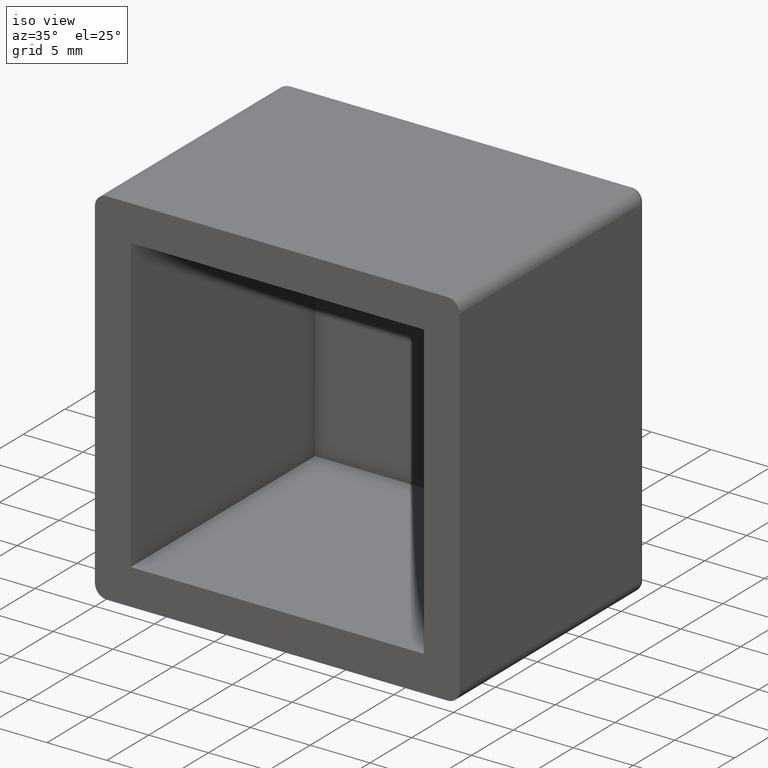
[diagram: clean part render]
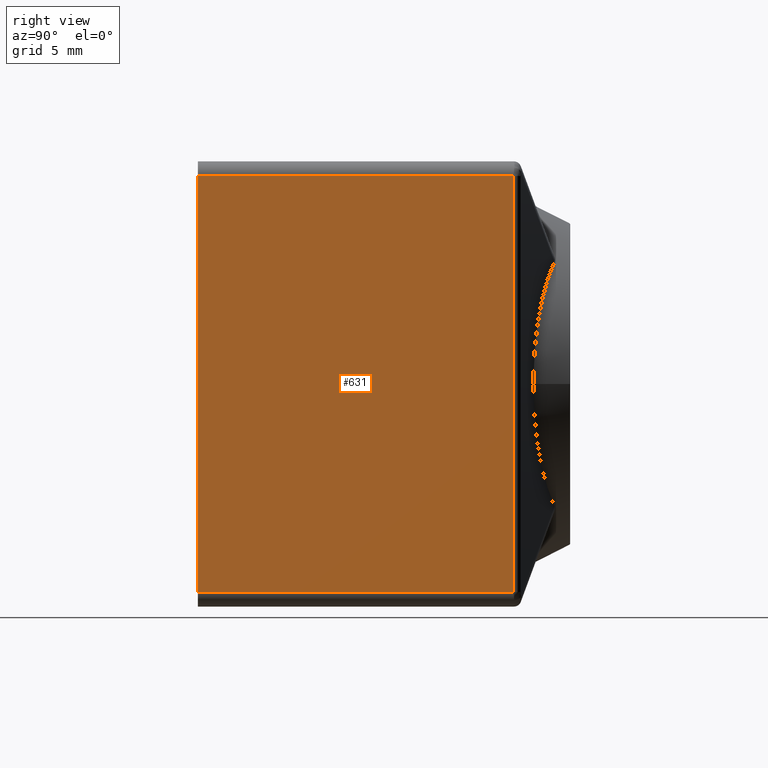
[diagram: tour spotlight — one face highlighted and labeled with its STEP entity id]
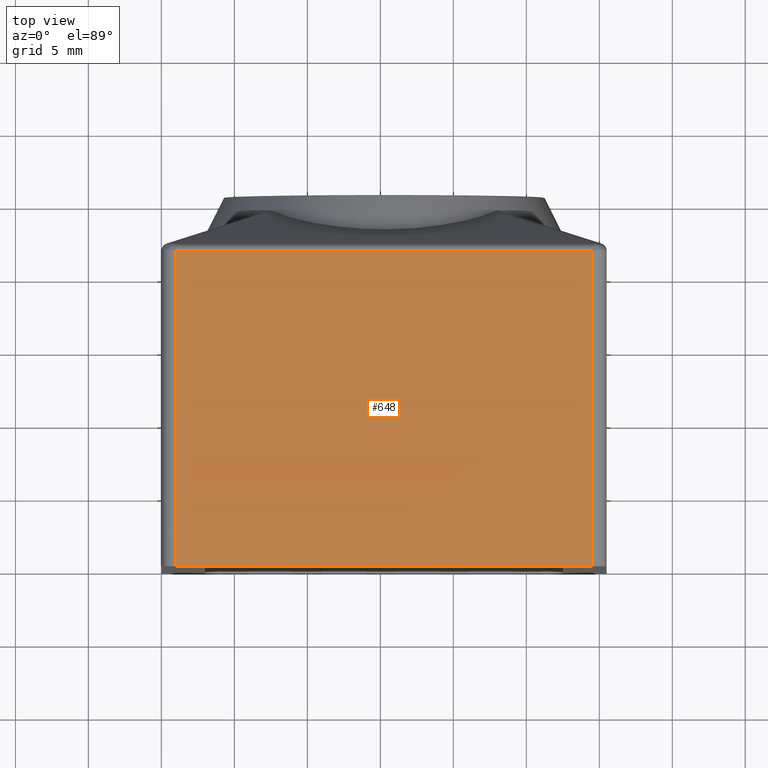
[diagram: tour spotlight — one face highlighted and labeled with its STEP entity id]
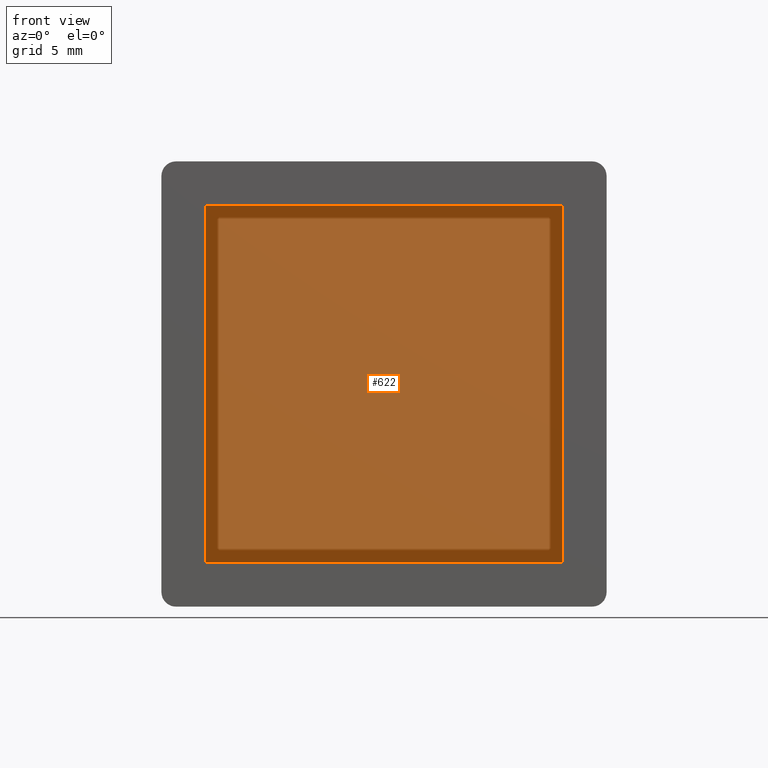
[diagram: tour spotlight — one face highlighted and labeled with its STEP entity id]
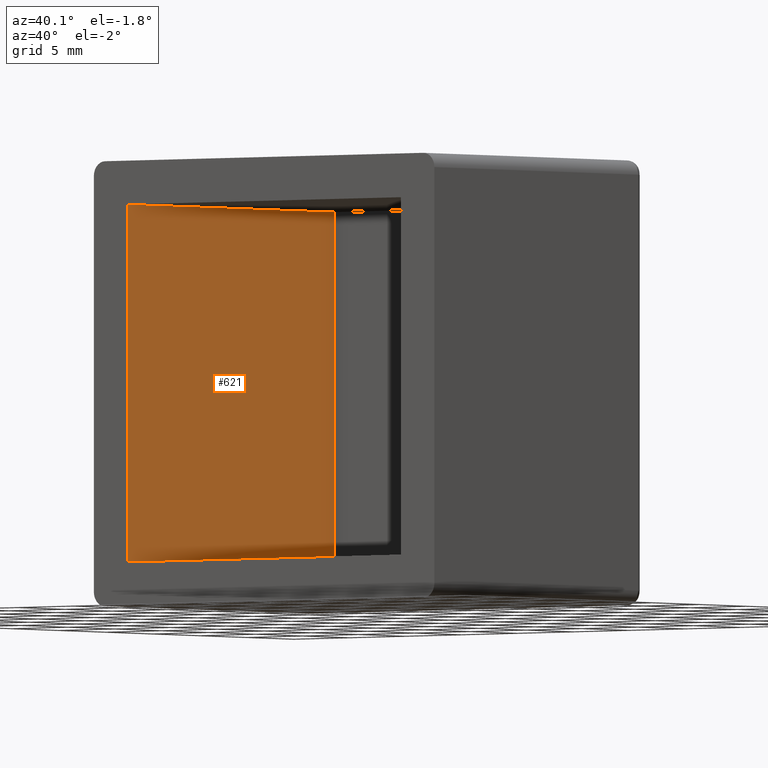
[diagram: tour spotlight — one face highlighted and labeled with its STEP entity id]
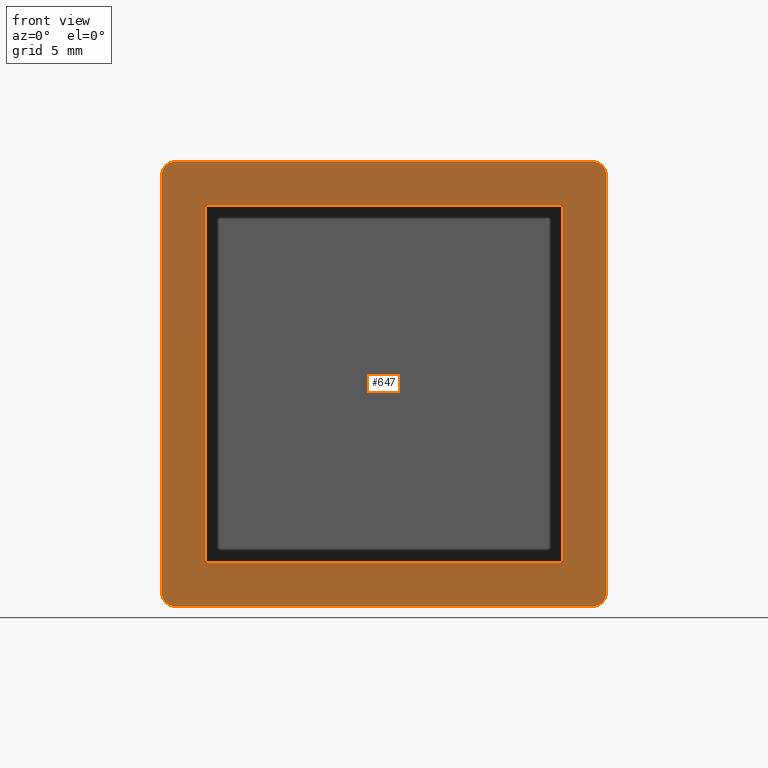
[diagram: tour spotlight — one face highlighted and labeled with its STEP entity id]
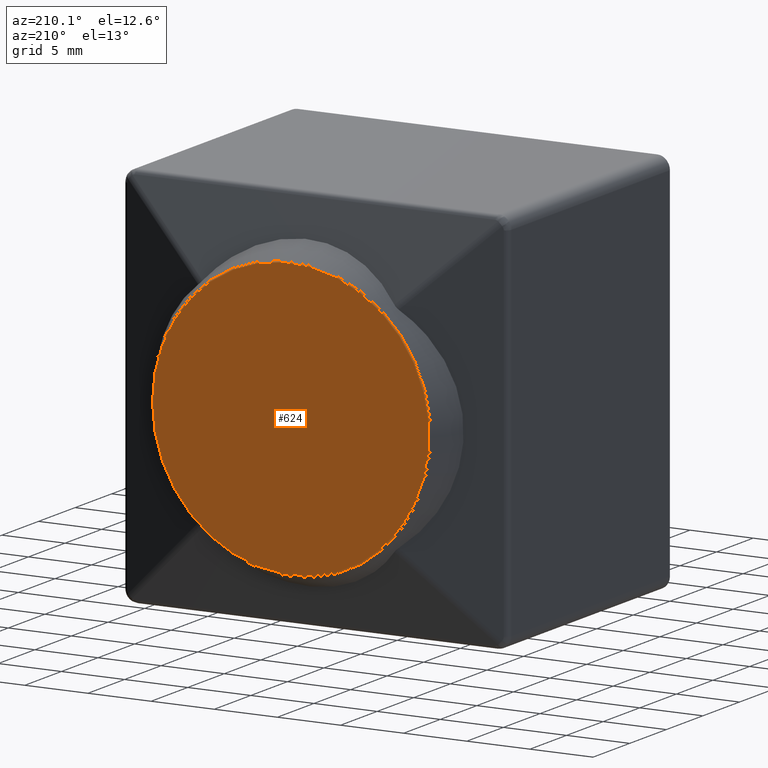
[diagram: tour spotlight — one face highlighted and labeled with its STEP entity id]
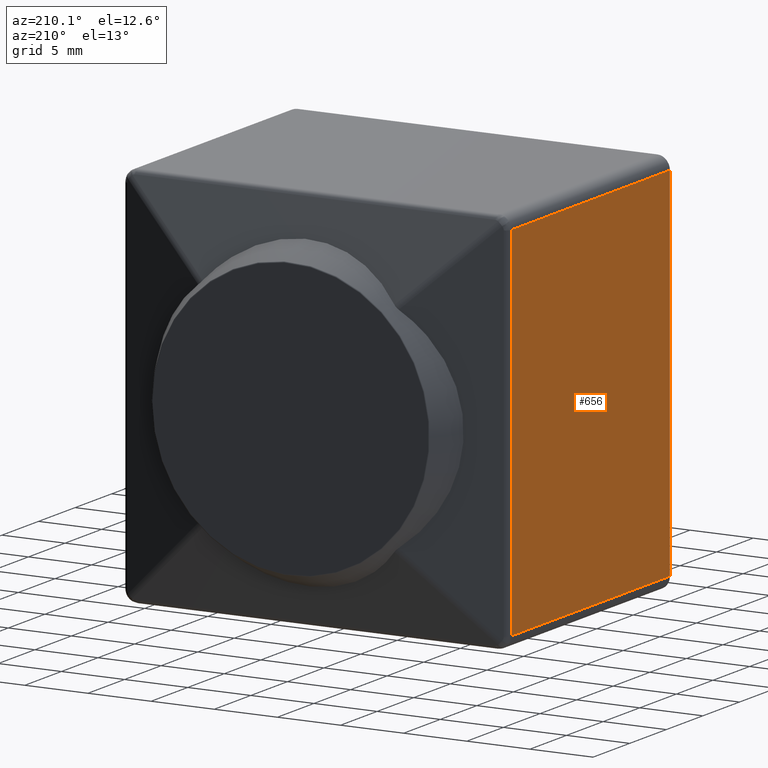
[diagram: tour spotlight — one face highlighted and labeled with its STEP entity id]
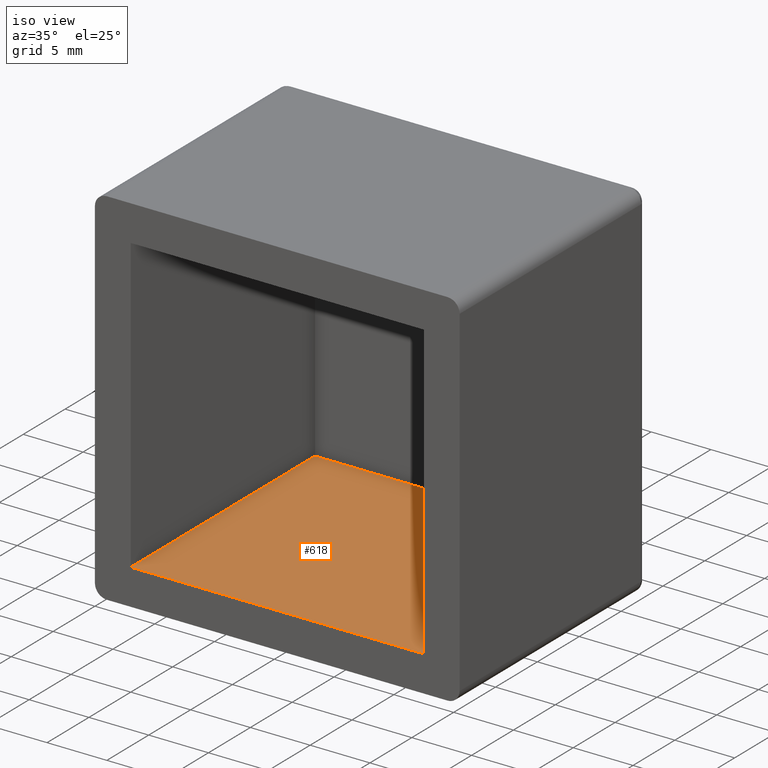
[diagram: tour spotlight — one face highlighted and labeled with its STEP entity id]
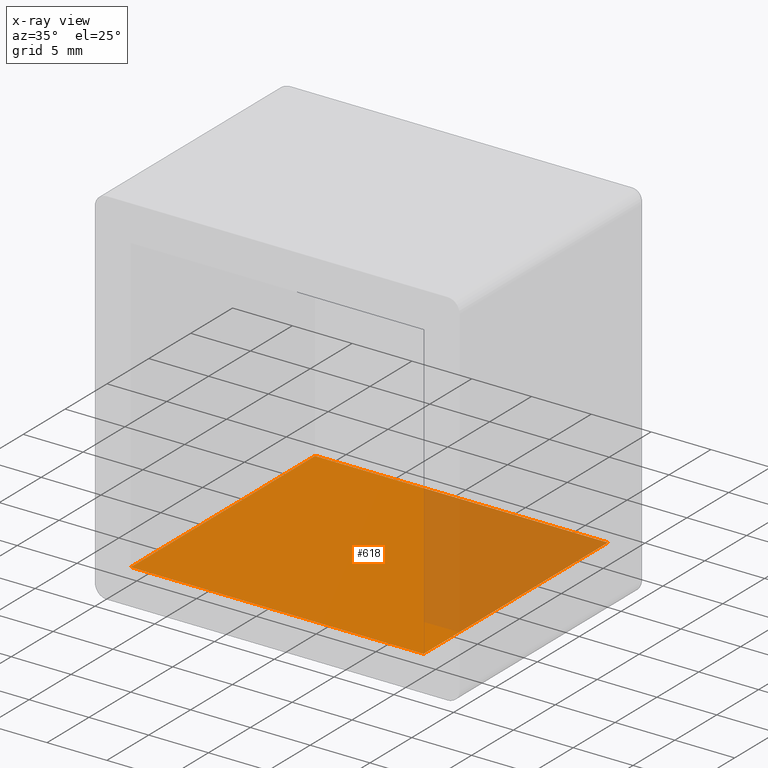
[diagram: x-ray of the same camera — body ghosted, this tour face saturated]
A machine part: a face-by-face anatomy tour. The part has 41 B-rep faces; the first image is the clean iso view, then the 8 largest visible faces are spotlighted one at a time (largest first), each with its STEP entity span.

Face 1 — right view, entity #631. In plain terms, the highlighted planar face has unit normal (1, -0, 0).
Definition (entity closure, byte-faithful):
#111=FACE_OUTER_BOUND('',#154,.T.);
#154=EDGE_LOOP('',(#469,#470,#471,#472));
#196=LINE('',#1074,#236);
#199=LINE('',#1080,#239);
#200=LINE('',#1082,#240);
#201=LINE('',#1083,#241);
#236=VECTOR('',#795,21.6395591301993);
#239=VECTOR('',#802,28.5);
#240=VECTOR('',#803,21.6395591301993);
#241=VECTOR('',#804,28.5);
#282=VERTEX_POINT('',#1006);
#289=VERTEX_POINT('',#1070);
#291=VERTEX_POINT('',#1079);
#292=VERTEX_POINT('',#1081);
#355=EDGE_CURVE('',#282,#289,#196,.T.);
#358=EDGE_CURVE('',#291,#282,#199,.T.);
#359=EDGE_CURVE('',#292,#291,#200,.T.);
#360=EDGE_CURVE('',#289,#292,#201,.T.);
#469=ORIENTED_EDGE('',*,*,#355,.F.);
#470=ORIENTED_EDGE('',*,*,#358,.F.);
#471=ORIENTED_EDGE('',*,*,#359,.F.);
#472=ORIENTED_EDGE('',*,*,#360,.F.);
#609=PLANE('',#686);
#631=ADVANCED_FACE('',(#111),#609,.T.);
#686=AXIS2_PLACEMENT_3D('',#1078,#800,#801);
#795=DIRECTION('',(-2.01858731750028E-16,-1.,0.));
#800=DIRECTION('center_axis',(1.,-2.01858731750028E-16,0.));
#801=DIRECTION('ref_axis',(3.5527136788005E-16,1.,0.));
#802=DIRECTION('',(0.,0.,-1.));
#803=DIRECTION('',(2.01858731750028E-16,1.,0.));
#804=DIRECTION('',(0.,0.,1.));
#1006=CARTESIAN_POINT('',(30.5,21.6395591301993,-14.25));
#1070=CARTESIAN_POINT('',(30.5,0.,-14.25));
#1074=CARTESIAN_POINT('',(30.5,5.5,-14.25));
#1078=CARTESIAN_POINT('Origin',(30.5,0.,0.));
#1079=CARTESIAN_POINT('',(30.5,21.6395591301993,14.25));
#1080=CARTESIAN_POINT('',(30.5,21.6395591301993,7.625));
#1081=CARTESIAN_POINT('',(30.5,0.,14.25));
#1082=CARTESIAN_POINT('',(30.5,5.5,14.25));
#1083=CARTESIAN_POINT('',(30.5,0.,0.));

Face 2 — top view, entity #648. In plain terms, the highlighted planar face has unit normal (0, 0, 1).
Definition (entity closure, byte-faithful):
#128=FACE_OUTER_BOUND('',#172,.T.);
#172=EDGE_LOOP('',(#553,#554,#555,#556));
#211=LINE('',#1273,#251);
#213=LINE('',#1278,#253);
#215=LINE('',#1284,#255);
#216=LINE('',#1285,#256);
#251=VECTOR('',#866,21.6519933315227);
#253=VECTOR('',#872,28.5);
#255=VECTOR('',#878,28.5);
#256=VECTOR('',#879,21.6519933315227);
#306=VERTEX_POINT('',#1212);
#310=VERTEX_POINT('',#1271);
#311=VERTEX_POINT('',#1277);
#313=VERTEX_POINT('',#1283);
#392=EDGE_CURVE('',#306,#310,#211,.T.);
#394=EDGE_CURVE('',#311,#310,#213,.T.);
#397=EDGE_CURVE('',#313,#306,#215,.T.);
#398=EDGE_CURVE('',#311,#313,#216,.T.);
#553=ORIENTED_EDGE('',*,*,#392,.F.);
#554=ORIENTED_EDGE('',*,*,#397,.F.);
#555=ORIENTED_EDGE('',*,*,#398,.F.);
#556=ORIENTED_EDGE('',*,*,#394,.T.);
#614=PLANE('',#716);
#648=ADVANCED_FACE('',(#128),#614,.T.);
#716=AXIS2_PLACEMENT_3D('',#1282,#876,#877);
#866=DIRECTION('',(-2.01858731750028E-16,-1.,0.));
#872=DIRECTION('',(1.,0.,0.));
#876=DIRECTION('center_axis',(0.,0.,1.));
#877=DIRECTION('ref_axis',(1.,0.,0.));
#878=DIRECTION('',(1.,0.,0.));
#879=DIRECTION('',(0.,1.,0.));
#1212=CARTESIAN_POINT('',(29.5,21.6519933315227,15.25));
#1271=CARTESIAN_POINT('',(29.5,0.,15.25));
#1273=CARTESIAN_POINT('',(29.5,5.5,15.25));
#1277=CARTESIAN_POINT('',(1.,0.,15.25));
#1278=CARTESIAN_POINT('',(0.,0.,15.25));
#1282=CARTESIAN_POINT('Origin',(15.25,11.,15.25));
#1283=CARTESIAN_POINT('',(1.,21.6519933315227,15.25));
#1284=CARTESIAN_POINT('',(7.625,21.6519933315227,15.25));
#1285=CARTESIAN_POINT('',(1.,16.5,15.25));

Face 3 — front view, entity #622. In plain terms, the highlighted planar face has unit normal (0, 1, 0).
Definition (entity closure, byte-faithful):
#102=FACE_OUTER_BOUND('',#143,.T.);
#143=EDGE_LOOP('',(#431,#432,#433,#434));
#185=LINE('',#924,#225);
#189=LINE('',#931,#229);
#192=LINE('',#937,#232);
#194=LINE('',#940,#234);
#225=VECTOR('',#738,24.5);
#229=VECTOR('',#744,24.5);
#232=VECTOR('',#749,24.5);
#234=VECTOR('',#753,24.5);
#265=VERTEX_POINT('',#921);
#266=VERTEX_POINT('',#923);
#268=VERTEX_POINT('',#929);
#270=VERTEX_POINT('',#935);
#323=EDGE_CURVE('',#265,#266,#185,.T.);
#327=EDGE_CURVE('',#268,#265,#189,.T.);
#330=EDGE_CURVE('',#270,#268,#192,.T.);
#332=EDGE_CURVE('',#266,#270,#194,.T.);
#431=ORIENTED_EDGE('',*,*,#332,.F.);
#432=ORIENTED_EDGE('',*,*,#323,.F.);
#433=ORIENTED_EDGE('',*,*,#327,.F.);
#434=ORIENTED_EDGE('',*,*,#330,.F.);
#607=PLANE('',#665);
#622=ADVANCED_FACE('',(#102),#607,.F.);
#665=AXIS2_PLACEMENT_3D('',#941,#754,#755);
#738=DIRECTION('',(-1.,0.,0.));
#744=DIRECTION('',(0.,0.,-1.));
#749=DIRECTION('',(1.,0.,0.));
#753=DIRECTION('',(-2.15247321100796E-16,0.,1.));
#754=DIRECTION('center_axis',(0.,1.,0.));
#755=DIRECTION('ref_axis',(0.,0.,1.));
#921=CARTESIAN_POINT('',(27.5,22.,-12.25));
#923=CARTESIAN_POINT('',(3.00000000000001,22.,-12.25));
#924=CARTESIAN_POINT('',(3.00000000000001,22.,-12.25));
#929=CARTESIAN_POINT('',(27.5,22.,12.25));
#931=CARTESIAN_POINT('',(27.5,22.,-12.25));
#935=CARTESIAN_POINT('',(3.,22.,12.25));
#937=CARTESIAN_POINT('',(27.5,22.,12.25));
#940=CARTESIAN_POINT('',(3.,22.,12.25));
#941=CARTESIAN_POINT('Origin',(15.25,22.,2.22044604925031E-15));

Face 4 — auxiliary view, entity #621. In plain terms, the highlighted planar face has unit normal (-1, 0, -0).
Definition (entity closure, byte-faithful):
#101=FACE_OUTER_BOUND('',#142,.T.);
#142=EDGE_LOOP('',(#427,#428,#429,#430));
#186=LINE('',#925,#226);
#191=LINE('',#936,#231);
#193=LINE('',#939,#233);
#194=LINE('',#940,#234);
#226=VECTOR('',#739,22.);
#231=VECTOR('',#748,22.);
#233=VECTOR('',#752,24.5);
#234=VECTOR('',#753,24.5);
#264=VERTEX_POINT('',#919);
#266=VERTEX_POINT('',#923);
#269=VERTEX_POINT('',#933);
#270=VERTEX_POINT('',#935);
#324=EDGE_CURVE('',#264,#266,#186,.T.);
#329=EDGE_CURVE('',#269,#270,#191,.T.);
#331=EDGE_CURVE('',#264,#269,#193,.T.);
#332=EDGE_CURVE('',#266,#270,#194,.T.);
#427=ORIENTED_EDGE('',*,*,#331,.F.);
#428=ORIENTED_EDGE('',*,*,#324,.T.);
#429=ORIENTED_EDGE('',*,*,#332,.T.);
#430=ORIENTED_EDGE('',*,*,#329,.F.);
#606=PLANE('',#664);
#621=ADVANCED_FACE('',(#101),#606,.F.);
#664=AXIS2_PLACEMENT_3D('',#938,#750,#751);
#739=DIRECTION('',(0.,1.,0.));
#748=DIRECTION('',(0.,1.,0.));
#750=DIRECTION('center_axis',(-1.,0.,-2.15247321100796E-16));
#751=DIRECTION('ref_axis',(-2.22044604925031E-16,0.,1.));
#752=DIRECTION('',(-2.15247321100796E-16,0.,1.));
#753=DIRECTION('',(-2.15247321100796E-16,0.,1.));
#919=CARTESIAN_POINT('',(3.00000000000001,0.,-12.25));
#923=CARTESIAN_POINT('',(3.00000000000001,22.,-12.25));
#925=CARTESIAN_POINT('',(3.00000000000001,0.,-12.25));
#933=CARTESIAN_POINT('',(3.,0.,12.25));
#935=CARTESIAN_POINT('',(3.,22.,12.25));
#936=CARTESIAN_POINT('',(3.,0.,12.25));
#938=CARTESIAN_POINT('Origin',(3.00000000000001,0.,-12.25));
#939=CARTESIAN_POINT('',(3.,0.,-6.125));
#940=CARTESIAN_POINT('',(3.,22.,12.25));

Face 5 — front view, entity #647. In plain terms, the highlighted planar face has unit normal (0, -1, 0).
Definition (entity closure, byte-faithful):
#74=FACE_BOUND('',#171,.T.);
#81=CIRCLE('',#684,1.);
#87=CIRCLE('',#700,1.);
#91=CIRCLE('',#712,1.);
#92=CIRCLE('',#715,1.);
#127=FACE_OUTER_BOUND('',#170,.T.);
#170=EDGE_LOOP('',(#541,#542,#543,#544,#545,#546,#547,#548));
#171=EDGE_LOOP('',(#549,#550,#551,#552));
#183=LINE('',#920,#223);
#187=LINE('',#928,#227);
#190=LINE('',#934,#230);
#193=LINE('',#939,#233);
#201=LINE('',#1083,#241);
#208=LINE('',#1186,#248);
#213=LINE('',#1278,#253);
#214=LINE('',#1281,#254);
#223=VECTOR('',#736,24.5);
#227=VECTOR('',#742,24.5);
#230=VECTOR('',#747,24.5);
#233=VECTOR('',#752,24.5);
#241=VECTOR('',#804,28.5);
#248=VECTOR('',#843,28.5);
#253=VECTOR('',#872,28.5);
#254=VECTOR('',#875,28.5);
#263=VERTEX_POINT('',#918);
#264=VERTEX_POINT('',#919);
#267=VERTEX_POINT('',#927);
#269=VERTEX_POINT('',#933);
#289=VERTEX_POINT('',#1070);
#290=VERTEX_POINT('',#1071);
#292=VERTEX_POINT('',#1081);
#303=VERTEX_POINT('',#1177);
#304=VERTEX_POINT('',#1178);
#310=VERTEX_POINT('',#1271);
#311=VERTEX_POINT('',#1277);
#312=VERTEX_POINT('',#1279);
#321=EDGE_CURVE('',#263,#264,#183,.T.);
#325=EDGE_CURVE('',#267,#263,#187,.T.);
#328=EDGE_CURVE('',#269,#267,#190,.T.);
#331=EDGE_CURVE('',#264,#269,#193,.T.);
#353=EDGE_CURVE('',#289,#290,#81,.T.);
#360=EDGE_CURVE('',#289,#292,#201,.T.);
#375=EDGE_CURVE('',#303,#304,#87,.T.);
#380=EDGE_CURVE('',#290,#303,#208,.T.);
#391=EDGE_CURVE('',#310,#292,#91,.T.);
#394=EDGE_CURVE('',#311,#310,#213,.T.);
#395=EDGE_CURVE('',#312,#311,#92,.T.);
#396=EDGE_CURVE('',#312,#304,#214,.T.);
#541=ORIENTED_EDGE('',*,*,#353,.F.);
#542=ORIENTED_EDGE('',*,*,#360,.T.);
#543=ORIENTED_EDGE('',*,*,#391,.F.);
#544=ORIENTED_EDGE('',*,*,#394,.F.);
#545=ORIENTED_EDGE('',*,*,#395,.F.);
#546=ORIENTED_EDGE('',*,*,#396,.T.);
#547=ORIENTED_EDGE('',*,*,#375,.F.);
#548=ORIENTED_EDGE('',*,*,#380,.F.);
#549=ORIENTED_EDGE('',*,*,#321,.T.);
#550=ORIENTED_EDGE('',*,*,#331,.T.);
#551=ORIENTED_EDGE('',*,*,#328,.T.);
#552=ORIENTED_EDGE('',*,*,#325,.T.);
#613=PLANE('',#714);
#647=ADVANCED_FACE('',(#127,#74),#613,.T.);
#684=AXIS2_PLACEMENT_3D('',#1072,#792,#793);
#700=AXIS2_PLACEMENT_3D('',#1179,#833,#834);
#712=AXIS2_PLACEMENT_3D('',#1272,#864,#865);
#714=AXIS2_PLACEMENT_3D('',#1276,#870,#871);
#715=AXIS2_PLACEMENT_3D('',#1280,#873,#874);
#736=DIRECTION('',(-1.,0.,0.));
#742=DIRECTION('',(0.,0.,-1.));
#747=DIRECTION('',(1.,0.,0.));
#752=DIRECTION('',(-2.15247321100796E-16,0.,1.));
#792=DIRECTION('center_axis',(0.,1.,0.));
#793=DIRECTION('ref_axis',(0.707106781186546,0.,-0.707106781186549));
#804=DIRECTION('',(0.,0.,1.));
#833=DIRECTION('center_axis',(0.,1.,0.));
#834=DIRECTION('ref_axis',(-0.707106781186547,0.,-0.707106781186548));
#843=DIRECTION('',(-1.,0.,0.));
#864=DIRECTION('center_axis',(0.,1.,0.));
#865=DIRECTION('ref_axis',(0.707106781186546,0.,0.707106781186549));
#870=DIRECTION('center_axis',(0.,-1.,0.));
#871=DIRECTION('ref_axis',(1.,0.,0.));
#872=DIRECTION('',(1.,0.,0.));
#873=DIRECTION('center_axis',(0.,1.,0.));
#874=DIRECTION('ref_axis',(-0.707106781186547,0.,0.707106781186548));
#875=DIRECTION('',(0.,0.,-1.));
#918=CARTESIAN_POINT('',(27.5,0.,-12.25));
#919=CARTESIAN_POINT('',(3.00000000000001,0.,-12.25));
#920=CARTESIAN_POINT('',(13.75,0.,-12.25));
#927=CARTESIAN_POINT('',(27.5,0.,12.25));
#928=CARTESIAN_POINT('',(27.5,0.,6.125));
#933=CARTESIAN_POINT('',(3.,0.,12.25));
#934=CARTESIAN_POINT('',(1.5,0.,12.25));
#939=CARTESIAN_POINT('',(3.,0.,-6.125));
#1070=CARTESIAN_POINT('',(30.5,0.,-14.25));
#1071=CARTESIAN_POINT('',(29.5,0.,-15.25));
#1072=CARTESIAN_POINT('Origin',(29.5,-5.55111512312578E-15,-14.25));
#1081=CARTESIAN_POINT('',(30.5,0.,14.25));
#1083=CARTESIAN_POINT('',(30.5,0.,0.));
#1177=CARTESIAN_POINT('',(1.,0.,-15.25));
#1178=CARTESIAN_POINT('',(0.,0.,-14.25));
#1179=CARTESIAN_POINT('Origin',(1.,0.,-14.25));
#1186=CARTESIAN_POINT('',(0.,0.,-15.25));
#1271=CARTESIAN_POINT('',(29.5,0.,15.25));
#1272=CARTESIAN_POINT('Origin',(29.5,-5.55111512312578E-15,14.25));
#1276=CARTESIAN_POINT('Origin',(0.,0.,0.));
#1277=CARTESIAN_POINT('',(1.,0.,15.25));
#1278=CARTESIAN_POINT('',(0.,0.,15.25));
#1279=CARTESIAN_POINT('',(0.,0.,14.25));
#1280=CARTESIAN_POINT('Origin',(1.,0.,14.25));
#1281=CARTESIAN_POINT('',(0.,0.,0.));

Face 6 — auxiliary view, entity #624. In plain terms, the highlighted planar face has unit normal (0, 1, 0).
Definition (entity closure, byte-faithful):
#75=CIRCLE('',#667,10.938196601125);
#104=FACE_OUTER_BOUND('',#146,.T.);
#146=EDGE_LOOP('',(#437));
#271=VERTEX_POINT('',#943);
#333=EDGE_CURVE('',#271,#271,#75,.T.);
#437=ORIENTED_EDGE('',*,*,#333,.F.);
#608=PLANE('',#669);
#624=ADVANCED_FACE('',(#104),#608,.T.);
#667=AXIS2_PLACEMENT_3D('',#944,#758,#759);
#669=AXIS2_PLACEMENT_3D('',#947,#762,#763);
#758=DIRECTION('center_axis',(0.,-1.,0.));
#759=DIRECTION('ref_axis',(-1.,0.,1.22464679914735E-16));
#762=DIRECTION('center_axis',(0.,1.,0.));
#763=DIRECTION('ref_axis',(0.,0.,1.));
#943=CARTESIAN_POINT('',(26.188196601125,25.5,0.));
#944=CARTESIAN_POINT('Origin',(15.25,25.5,0.));
#947=CARTESIAN_POINT('Origin',(26.25,25.5,0.));

Face 7 — auxiliary view, entity #656. In plain terms, the highlighted planar face has unit normal (-1, 0, 0).
Definition (entity closure, byte-faithful):
#136=FACE_OUTER_BOUND('',#180,.T.);
#180=EDGE_LOOP('',(#589,#590,#591,#592));
#204=LINE('',#1180,#244);
#214=LINE('',#1281,#254);
#219=LINE('',#1374,#259);
#221=LINE('',#1378,#261);
#244=VECTOR('',#835,21.6395591301993);
#254=VECTOR('',#875,28.5);
#259=VECTOR('',#904,21.6395591301993);
#261=VECTOR('',#910,28.5);
#301=VERTEX_POINT('',#1143);
#304=VERTEX_POINT('',#1178);
#312=VERTEX_POINT('',#1279);
#317=VERTEX_POINT('',#1315);
#376=EDGE_CURVE('',#304,#301,#204,.T.);
#396=EDGE_CURVE('',#312,#304,#214,.T.);
#411=EDGE_CURVE('',#317,#312,#219,.T.);
#413=EDGE_CURVE('',#301,#317,#221,.T.);
#589=ORIENTED_EDGE('',*,*,#376,.F.);
#590=ORIENTED_EDGE('',*,*,#396,.F.);
#591=ORIENTED_EDGE('',*,*,#411,.F.);
#592=ORIENTED_EDGE('',*,*,#413,.F.);
#616=PLANE('',#729);
#656=ADVANCED_FACE('',(#136),#616,.T.);
#729=AXIS2_PLACEMENT_3D('',#1377,#908,#909);
#835=DIRECTION('',(0.,1.,0.));
#875=DIRECTION('',(0.,0.,-1.));
#904=DIRECTION('',(0.,-1.,0.));
#908=DIRECTION('center_axis',(-1.,0.,0.));
#909=DIRECTION('ref_axis',(0.,-1.,0.));
#910=DIRECTION('',(0.,0.,1.));
#1143=CARTESIAN_POINT('',(-2.77555756156289E-16,21.6395591301993,-14.25));
#1178=CARTESIAN_POINT('',(0.,0.,-14.25));
#1180=CARTESIAN_POINT('',(0.,16.5,-14.25));
#1279=CARTESIAN_POINT('',(0.,0.,14.25));
#1281=CARTESIAN_POINT('',(0.,0.,0.));
#1315=CARTESIAN_POINT('',(-2.77555756156289E-16,21.6395591301993,14.25));
#1374=CARTESIAN_POINT('',(0.,16.5,14.25));
#1377=CARTESIAN_POINT('Origin',(0.,22.,0.));
#1378=CARTESIAN_POINT('',(0.,21.6395591301993,-7.625));

Face 8 — iso view, entity #618. An x-ray twin of the same camera follows (body ghosted, this face saturated) — the face is partly hidden behind the body. In plain terms, the highlighted planar face has unit normal (0, 0, -1).
Definition (entity closure, byte-faithful):
#98=FACE_OUTER_BOUND('',#139,.T.);
#139=EDGE_LOOP('',(#415,#416,#417,#418));
#183=LINE('',#920,#223);
#184=LINE('',#922,#224);
#185=LINE('',#924,#225);
#186=LINE('',#925,#226);
#223=VECTOR('',#736,24.5);
#224=VECTOR('',#737,22.);
#225=VECTOR('',#738,24.5);
#226=VECTOR('',#739,22.);
#263=VERTEX_POINT('',#918);
#264=VERTEX_POINT('',#919);
#265=VERTEX_POINT('',#921);
#266=VERTEX_POINT('',#923);
#321=EDGE_CURVE('',#263,#264,#183,.T.);
#322=EDGE_CURVE('',#263,#265,#184,.T.);
#323=EDGE_CURVE('',#265,#266,#185,.T.);
#324=EDGE_CURVE('',#264,#266,#186,.T.);
#415=ORIENTED_EDGE('',*,*,#321,.F.);
#416=ORIENTED_EDGE('',*,*,#322,.T.);
#417=ORIENTED_EDGE('',*,*,#323,.T.);
#418=ORIENTED_EDGE('',*,*,#324,.F.);
#603=PLANE('',#661);
#618=ADVANCED_FACE('',(#98),#603,.F.);
#661=AXIS2_PLACEMENT_3D('',#917,#734,#735);
#734=DIRECTION('center_axis',(0.,0.,-1.));
#735=DIRECTION('ref_axis',(-1.,0.,0.));
#736=DIRECTION('',(-1.,0.,0.));
#737=DIRECTION('',(0.,1.,0.));
#738=DIRECTION('',(-1.,0.,0.));
#739=DIRECTION('',(0.,1.,0.));
#917=CARTESIAN_POINT('Origin',(27.5,0.,-12.25));
#918=CARTESIAN_POINT('',(27.5,0.,-12.25));
#919=CARTESIAN_POINT('',(3.00000000000001,0.,-12.25));
#920=CARTESIAN_POINT('',(13.75,0.,-12.25));
#921=CARTESIAN_POINT('',(27.5,22.,-12.25));
#922=CARTESIAN_POINT('',(27.5,0.,-12.25));
#923=CARTESIAN_POINT('',(3.00000000000001,22.,-12.25));
#924=CARTESIAN_POINT('',(3.00000000000001,22.,-12.25));
#925=CARTESIAN_POINT('',(3.00000000000001,0.,-12.25));